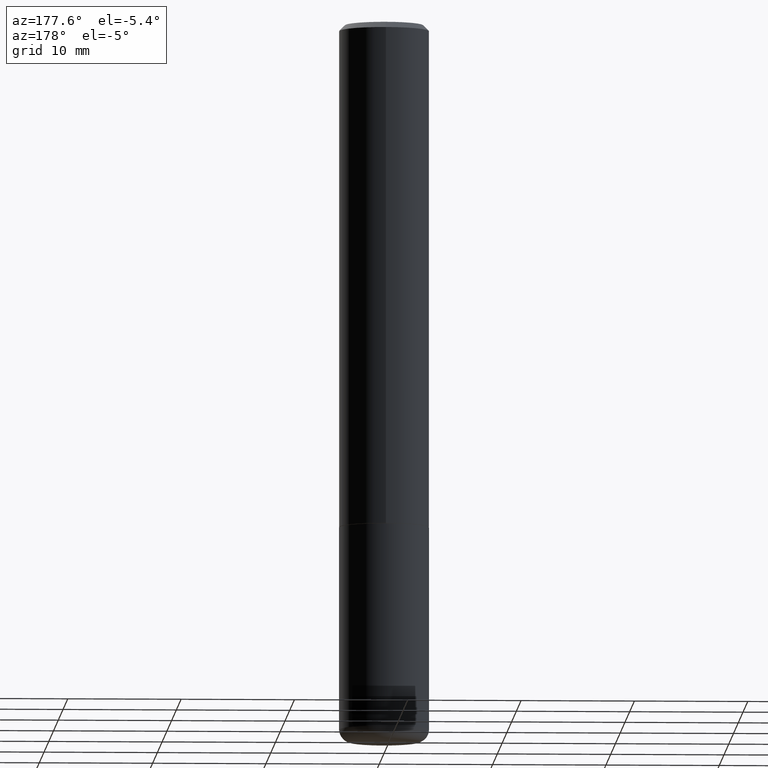
[diagram: clean part render]
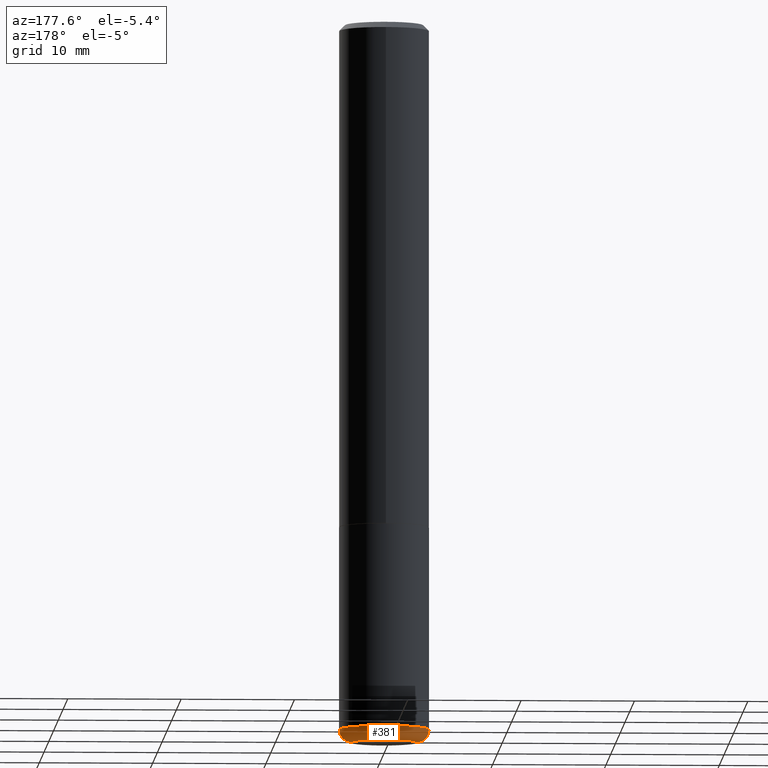
[diagram: same view with one face highlighted and labeled with its STEP entity id]
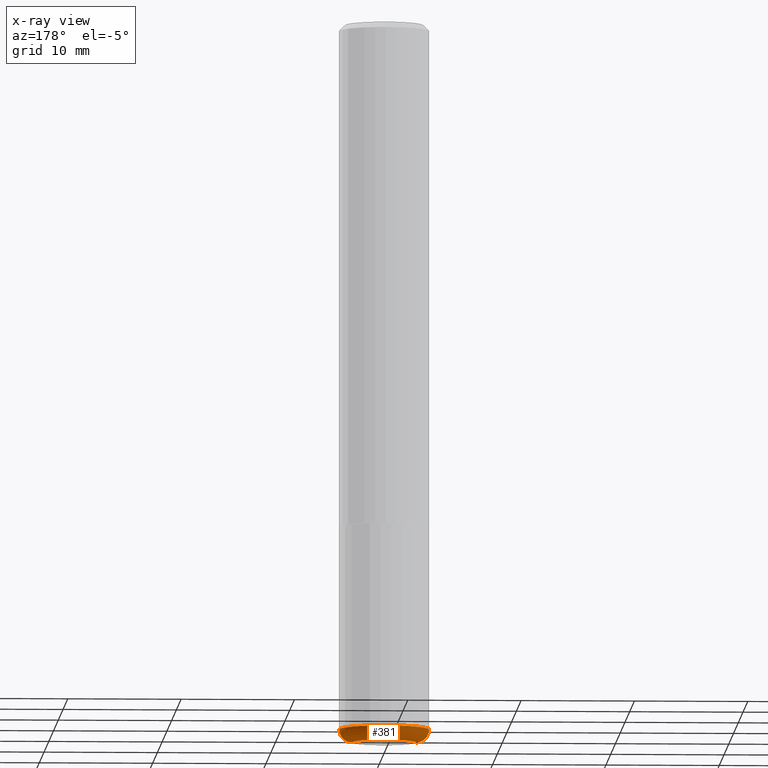
[diagram: x-ray of the same camera — body ghosted, the highlighted face saturated]
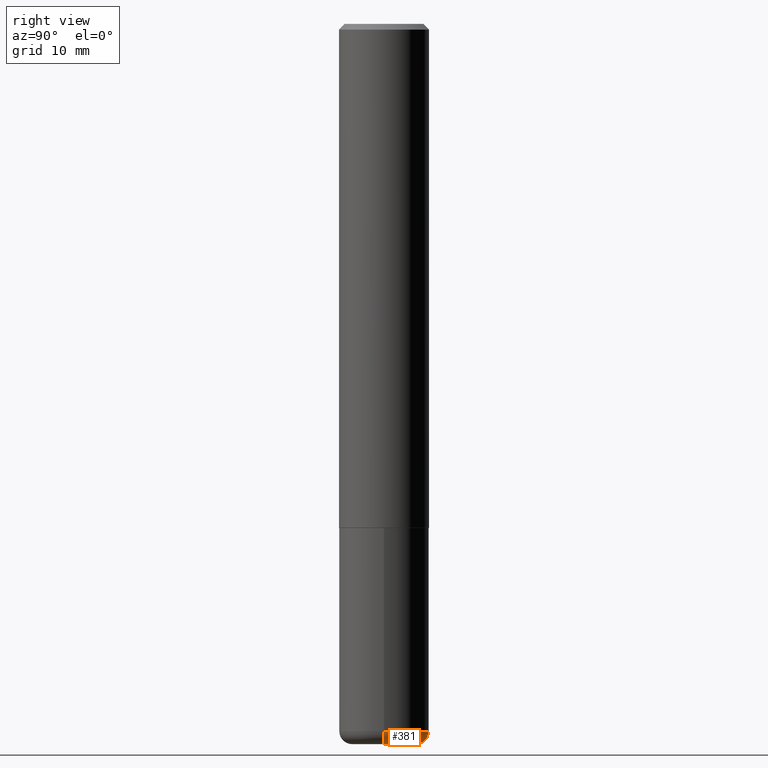
[diagram: same view with one face highlighted and labeled with its STEP entity id]
A machine part, auxiliary view. The second image highlights one B-rep face of the part: STEP entity #381.
The next image is the same camera in x-ray: the body ghosted, the highlighted face saturated — about 0% of this face is hidden behind the body in this view.
A second angle (right view) of the same face is appended — the face is thin or edge-on in the first view.
In plain terms, the highlighted toroidal blend (fillet) surface has major radius 2.8257 mm and minor (blend) radius 1.143 mm.
Its self-contained STEP definition (entity closure, byte-faithful):
#4 = CIRCLE ( 'NONE', #55, 0.04499999999999996364 ) ;
#16 = ORIENTED_EDGE ( 'NONE', *, *, #25, .F. ) ;
#25 = EDGE_CURVE ( 'NONE', #406, #47, #323, .T. ) ;
#29 = CIRCLE ( 'NONE', #314, 0.04499999999999996364 ) ;
#35 = DIRECTION ( 'NONE',  ( -1.000000000000000000, 7.105427357600996337E-15, 0.000000000000000000 ) ) ;
#47 = VERTEX_POINT ( 'NONE', #278 ) ;
#55 = AXIS2_PLACEMENT_3D ( 'NONE', #353, #237, #35 ) ;
#63 = DIRECTION ( 'NONE',  ( 1.000000000000000000, -6.982962677686273810E-15, 0.000000000000000000 ) ) ;
#66 = DIRECTION ( 'NONE',  ( -6.982962677686266711E-15, -1.000000000000000000, 3.491481338843145583E-15 ) ) ;
#68 = EDGE_CURVE ( 'NONE', #133, #47, #4, .T. ) ;
#81 = ORIENTED_EDGE ( 'NONE', *, *, #165, .T. ) ;
#100 = ORIENTED_EDGE ( 'NONE', *, *, #147, .F. ) ;
#102 = DIRECTION ( 'NONE',  ( -2.445468806185136597E-29, 3.491481338843145583E-15, 1.000000000000000000 ) ) ;
#108 = DIRECTION ( 'NONE',  ( -2.445468806185136597E-29, 3.491481338843145583E-15, 1.000000000000000000 ) ) ;
#109 = VERTEX_POINT ( 'NONE', #205 ) ;
#116 = CIRCLE ( 'NONE', #378, 0.1112500000000000017 ) ;
#122 = CARTESIAN_POINT ( 'NONE',  ( 6.003625919184510659E-29, -8.571586686859923311E-15, -2.455000000000000071 ) ) ;
#124 = CARTESIAN_POINT ( 'NONE',  ( 6.113672015462842613E-29, -8.728703347107864943E-15, -2.500000000000000000 ) ) ;
#133 = VERTEX_POINT ( 'NONE', #234 ) ;
#137 = AXIS2_PLACEMENT_3D ( 'NONE', #122, #108, #341 ) ;
#142 = DIRECTION ( 'NONE',  ( -2.445468806185136597E-29, 3.491481338843145583E-15, 1.000000000000000000 ) ) ;
#147 = EDGE_CURVE ( 'NONE', #109, #406, #29, .T. ) ;
#155 = CARTESIAN_POINT ( 'NONE',  ( 0.1562500000000000000, -9.662674605248401695E-15, -2.455000000000000071 ) ) ;
#165 = EDGE_CURVE ( 'NONE', #109, #133, #116, .T. ) ;
#201 = AXIS2_PLACEMENT_3D ( 'NONE', #239, #142, #279 ) ;
#204 = DIRECTION ( 'NONE',  ( 1.000000000000000000, -6.982962677686269077E-15, 0.000000000000000000 ) ) ;
#205 = CARTESIAN_POINT ( 'NONE',  ( 0.1112500000000000017, -9.505557945000461641E-15, -2.500000000000000000 ) ) ;
#234 = CARTESIAN_POINT ( 'NONE',  ( -0.1112500000000000017, -7.699794107904759087E-15, -2.500000000000000000 ) ) ;
#237 = DIRECTION ( 'NONE',  ( 7.105427357601001859E-15, 1.000000000000000000, -3.491481338843145583E-15 ) ) ;
#239 = CARTESIAN_POINT ( 'NONE',  ( 6.003625919184510659E-29, -8.571586686859923311E-15, -2.455000000000000071 ) ) ;
#271 = ORIENTED_EDGE ( 'NONE', *, *, #68, .T. ) ;
#278 = CARTESIAN_POINT ( 'NONE',  ( -0.1562500000000000000, -7.461363662234766770E-15, -2.455000000000000071 ) ) ;
#279 = DIRECTION ( 'NONE',  ( 1.000000000000000000, -6.982962677686270655E-15, 4.883557194083114022E-29 ) ) ;
#314 = AXIS2_PLACEMENT_3D ( 'NONE', #392, #66, #63 ) ;
#323 = CIRCLE ( 'NONE', #137, 0.1562500000000000000 ) ;
#337 = FACE_OUTER_BOUND ( 'NONE', #403, .T. ) ;
#341 = DIRECTION ( 'NONE',  ( 1.000000000000000000, -6.982962677686269077E-15, 0.000000000000000000 ) ) ;
#353 = CARTESIAN_POINT ( 'NONE',  ( -0.1112500000000000017, -7.781107893326811349E-15, -2.455000000000000071 ) ) ;
#359 = TOROIDAL_SURFACE ( 'NONE', #201, 0.1112500000000000017, 0.04499999999999996364 ) ;
#378 = AXIS2_PLACEMENT_3D ( 'NONE', #124, #102, #204 ) ;
#381 = ADVANCED_FACE ( 'NONE', ( #337 ), #359, .T. ) ;
#392 = CARTESIAN_POINT ( 'NONE',  ( 0.1112500000000000017, -9.348441284752520009E-15, -2.455000000000000071 ) ) ;
#403 = EDGE_LOOP ( 'NONE', ( #81, #271, #16, #100 ) ) ;
#406 = VERTEX_POINT ( 'NONE', #155 ) ;